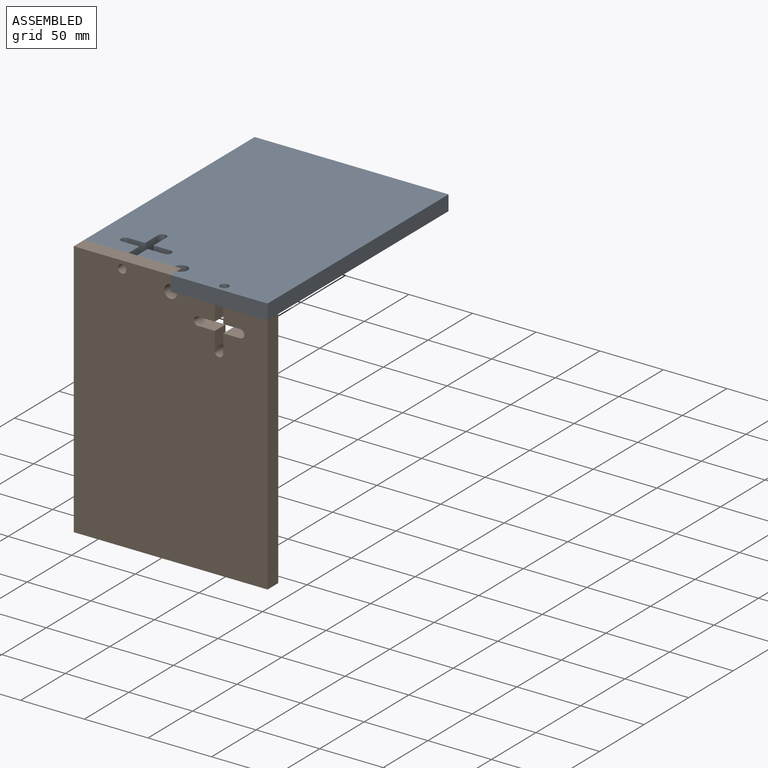
[diagram: assembled view]
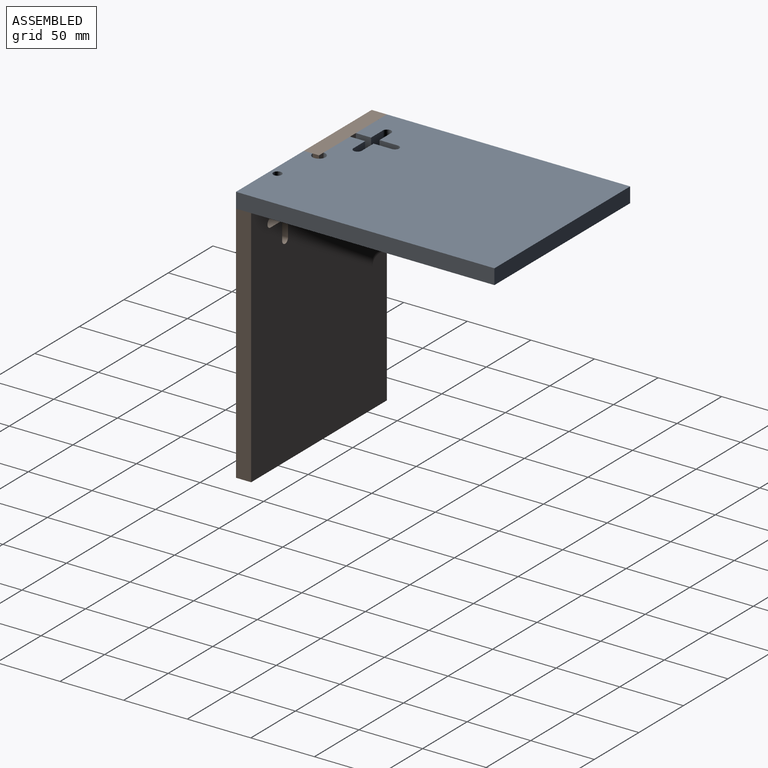
[diagram: assembled view, second angle]
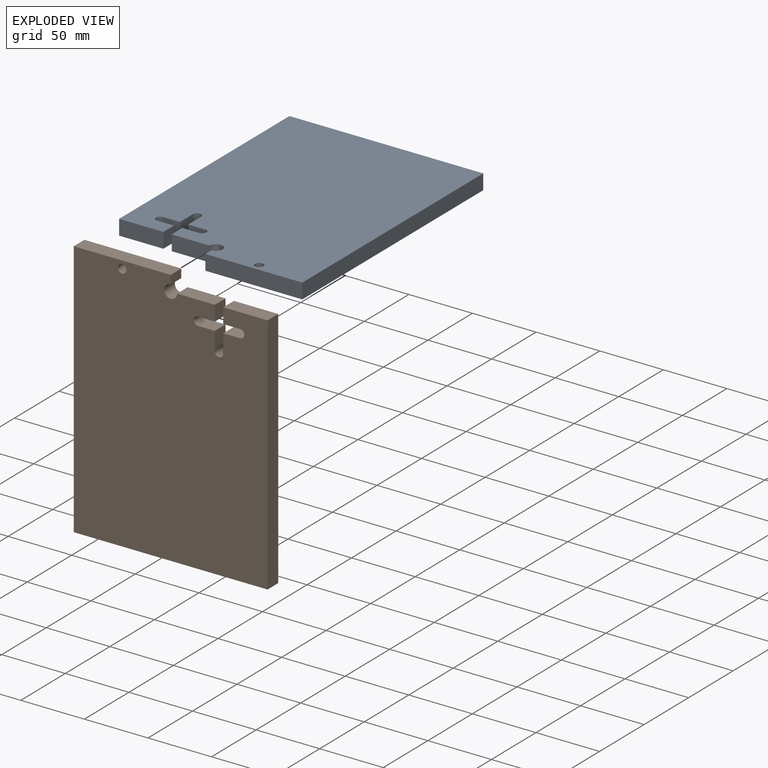
[diagram: exploded view]
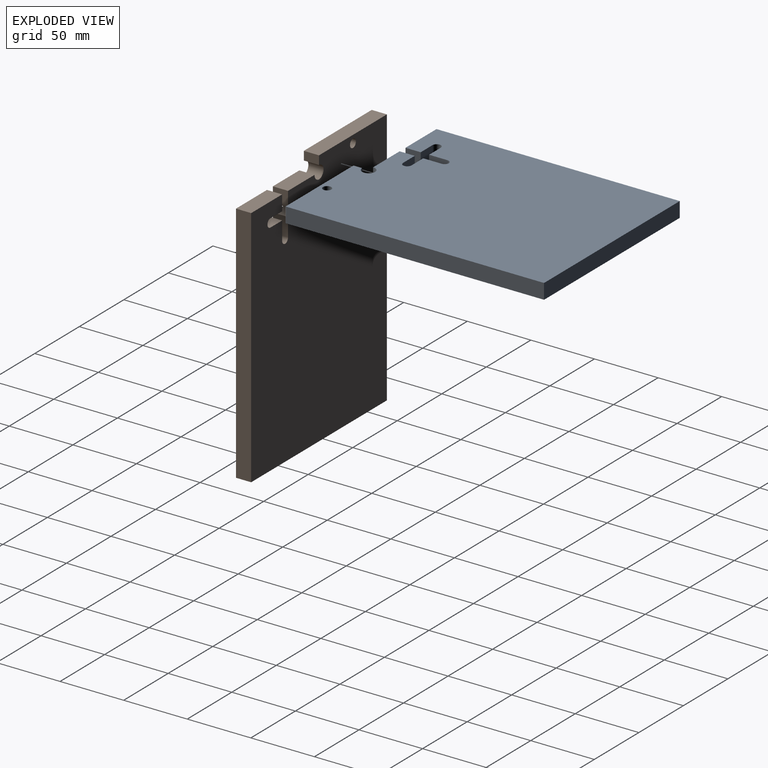
[diagram: exploded view, second angle]
ASSEMBLY  parts=2 mates=3
PART A: 22 faces, bbox 152.4x11.9x203.2 mm
  f0: plane 203.2x11.94mm, normal (1,0,0), area 2425.8mm2, adj f1,f3,f4,f5
  f1: plane 152.4x11.94mm, normal (0,0,1), area 1819.4mm2, adj f0,f2,f4,f5
  f2: plane 191.26x11.94mm, normal (-1,0,0), area 2283.3mm2, adj f1,f4,f5,f19
  f3: plane 76.2x11.94mm, normal (0,0,-1), area 909.7mm2, adj f0,f4,f5,f20
  f4: plane 203.2x152.4mm, normal (0,-1,0), area 29519.1mm2, adj f0,f1,f2,f3,f6,f7,f8,f9
  f5: plane 203.2x152.4mm, normal (0,1,0), area 29519.1mm2, adj f0,f1,f2,f3,f6,f7,f8,f9
  f6: cylinder r=5.08mm len=11.94mm, axis (0,-1,0), area 285.8mm2, adj f4,f5,f7,f20
  f7: plane 29.72x11.94mm, normal (0,0,-1), area 354.8mm2, adj f4,f5,f6,f8
  f8: plane 11.94x11.94mm, normal (-1,0,0), area 142.5mm2, adj f4,f5,f7,f9
  f9: plane 13.21x11.94mm, normal (0,0,1), area 157.7mm2, adj f4,f5,f8,f10
  f10: cylinder r=3.3mm len=11.94mm, axis (0,-1,0), area 123.8mm2, adj f4,f5,f9,f11
  f11: plane 13.21x11.94mm, normal (0,0,-1), area 157.7mm2, adj f4,f5,f10,f12
  f12: plane 14.48x11.94mm, normal (-1,0,0), area 172.8mm2, adj f4,f5,f11,f13
  f13: cylinder r=3.3mm len=11.94mm, axis (0,-1,0), area 123.8mm2, adj f4,f5,f12,f14
  f14: plane 14.48x11.94mm, normal (1,0,0), area 172.8mm2, adj f4,f5,f13,f15
  f15: plane 13.21x11.94mm, normal (0,0,-1), area 157.7mm2, adj f4,f5,f14,f16
  f16: cylinder r=3.3mm len=11.94mm, axis (0,-1,0), area 123.8mm2, adj f4,f5,f15,f17
  f17: plane 13.21x11.94mm, normal (0,0,1), area 157.7mm2, adj f4,f5,f16,f18
  f18: plane 11.94x11.94mm, normal (1,0,0), area 142.5mm2, adj f4,f5,f17,f19
  f19: plane 34.8x11.94mm, normal (0,0,-1), area 415.4mm2, adj f2,f4,f5,f18
  f20: plane 11.94x6.86mm, normal (-1,0,0), area 81.9mm2, adj f3,f4,f5,f6
  f21: cylinder r=3.3mm len=11.94mm, axis (0,-1,0), area 247.7mm2, adj f4,f5
PART B: same geometry as A
PLACE A rot(axis=(-1,0,0),90deg) t=(63.2,-77.55,32.72)mm fixed
PLACE B rot(axis=(0,1,0),180deg) t=(63.2,-167.22,-56.94)mm
MATE planar B.f20 <-> A.f20  axis (1,0,0) through (63.2,-173.19,41.23)mm
MATE planar B.f3 <-> A.f4  axis (0,0,1) through (25.1,-173.19,44.66)mm
MATE planar A.f19 <-> B.f5  axis (0,-1,0) through (4.4,-167.22,38.69)mm
